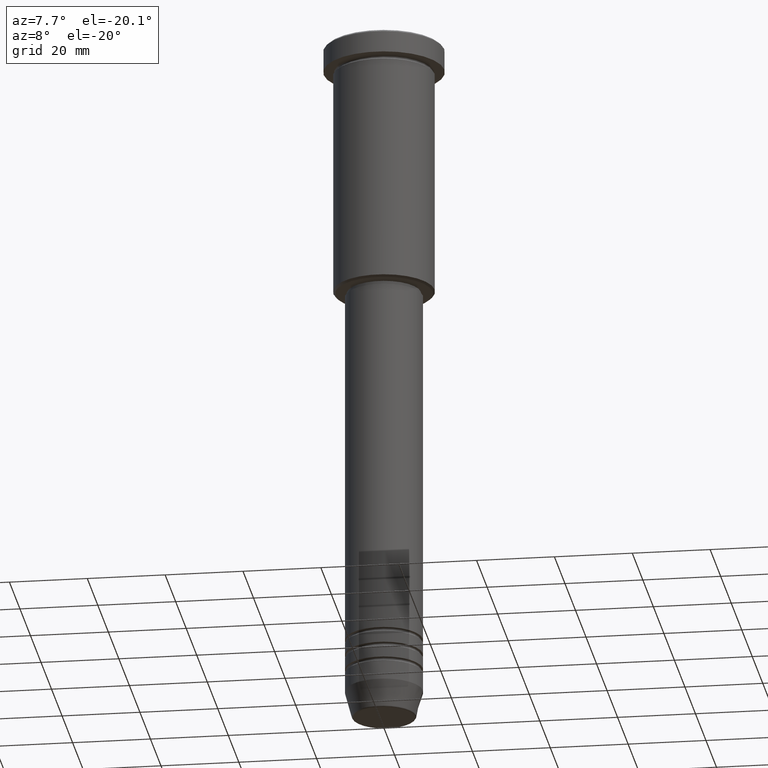
[diagram: clean part render]
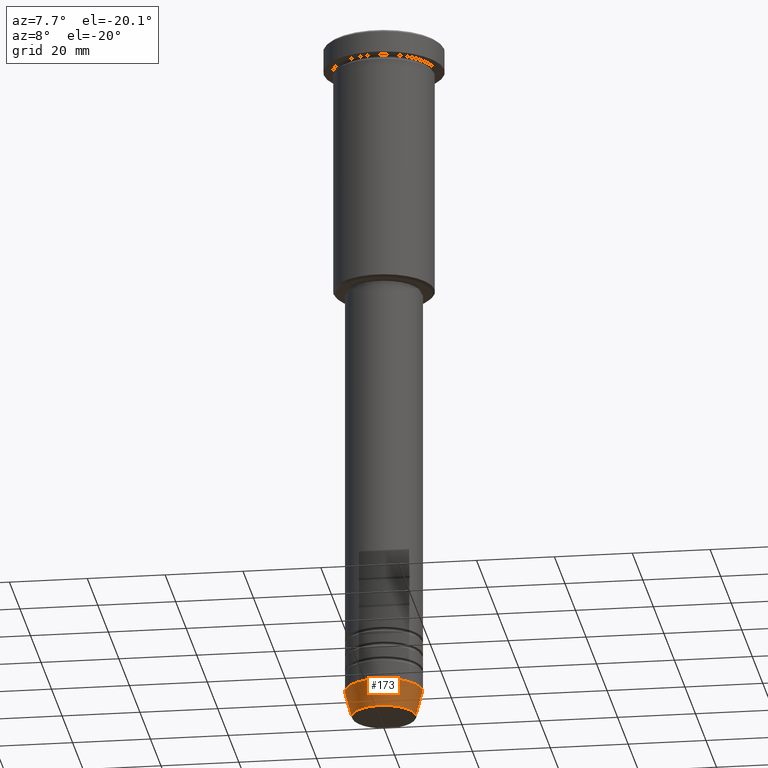
[diagram: same view with one face highlighted and labeled with its STEP entity id]
A machine part, auxiliary view. The second image highlights one B-rep face of the part: STEP entity #173.
In plain terms, the highlighted conical surface has half-angle 15 deg.
Its self-contained STEP definition (entity closure, byte-faithful):
#9 = ORIENTED_EDGE ( 'NONE', *, *, #24, .T. ) ;
#10 = CIRCLE ( 'NONE', #157, 8.223655072137185940 ) ;
#24 = EDGE_CURVE ( 'NONE', #479, #107, #10, .T. ) ;
#90 = DIRECTION ( 'NONE',  ( 1.000000000000000000, 0.000000000000000000, 0.000000000000000000 ) ) ;
#107 = VERTEX_POINT ( 'NONE', #774 ) ;
#110 = DIRECTION ( 'NONE',  ( 1.000000000000000000, 0.000000000000000000, 0.000000000000000000 ) ) ;
#157 = AXIS2_PLACEMENT_3D ( 'NONE', #279, #913, #650 ) ;
#173 = ADVANCED_FACE ( 'NONE', ( #1090 ), #1076, .T. ) ;
#214 = LINE ( 'NONE', #943, #382 ) ;
#264 = VERTEX_POINT ( 'NONE', #645 ) ;
#279 = CARTESIAN_POINT ( 'NONE',  ( 0.000000000000000000, 0.000000000000000000, -180.6294095225512706 ) ) ;
#297 = DIRECTION ( 'NONE',  ( -0.000000000000000000, -0.000000000000000000, 1.000000000000000000 ) ) ;
#382 = VECTOR ( 'NONE', #509, 1000.000000000000114 ) ;
#457 = VERTEX_POINT ( 'NONE', #593 ) ;
#478 = AXIS2_PLACEMENT_3D ( 'NONE', #1119, #297, #110 ) ;
#479 = VERTEX_POINT ( 'NONE', #845 ) ;
#503 = CIRCLE ( 'NONE', #806, 10.00000000000000000 ) ;
#509 = DIRECTION ( 'NONE',  ( 0.2588190451025210725, 0.000000000000000000, 0.9659258262890680902 ) ) ;
#522 = VECTOR ( 'NONE', #702, 1000.000000000000114 ) ;
#529 = EDGE_LOOP ( 'NONE', ( #905, #9, #594, #689 ) ) ;
#593 = CARTESIAN_POINT ( 'NONE',  ( -10.00000000000000000, 1.224646799147353256E-15, -174.0000000000000000 ) ) ;
#594 = ORIENTED_EDGE ( 'NONE', *, *, #860, .T. ) ;
#645 = CARTESIAN_POINT ( 'NONE',  ( 10.00000000000000000, 0.000000000000000000, -174.0000000000000000 ) ) ;
#650 = DIRECTION ( 'NONE',  ( 1.000000000000000000, 0.000000000000000000, 0.000000000000000000 ) ) ;
#668 = EDGE_CURVE ( 'NONE', #479, #457, #1149, .T. ) ;
#689 = ORIENTED_EDGE ( 'NONE', *, *, #824, .F. ) ;
#702 = DIRECTION ( 'NONE',  ( -0.2588190451025210725, 3.169619151431769255E-17, 0.9659258262890680902 ) ) ;
#774 = CARTESIAN_POINT ( 'NONE',  ( 8.223655072137185940, 0.000000000000000000, -180.6294095225512706 ) ) ;
#797 = CARTESIAN_POINT ( 'NONE',  ( -10.00000000000000000, 1.224646799147353256E-15, -174.0000000000000000 ) ) ;
#806 = AXIS2_PLACEMENT_3D ( 'NONE', #919, #903, #90 ) ;
#824 = EDGE_CURVE ( 'NONE', #457, #264, #503, .T. ) ;
#845 = CARTESIAN_POINT ( 'NONE',  ( -8.223655072137185940, 1.115877042642911659E-15, -180.6294095225512706 ) ) ;
#860 = EDGE_CURVE ( 'NONE', #107, #264, #214, .T. ) ;
#903 = DIRECTION ( 'NONE',  ( -0.000000000000000000, -0.000000000000000000, 1.000000000000000000 ) ) ;
#905 = ORIENTED_EDGE ( 'NONE', *, *, #668, .F. ) ;
#913 = DIRECTION ( 'NONE',  ( -0.000000000000000000, -0.000000000000000000, 1.000000000000000000 ) ) ;
#919 = CARTESIAN_POINT ( 'NONE',  ( 0.000000000000000000, 0.000000000000000000, -174.0000000000000000 ) ) ;
#943 = CARTESIAN_POINT ( 'NONE',  ( 10.00000000000000000, 0.000000000000000000, -174.0000000000000000 ) ) ;
#1076 = CONICAL_SURFACE ( 'NONE', #478, 10.00000000000000000, 0.2617993877991497964 ) ;
#1090 = FACE_OUTER_BOUND ( 'NONE', #529, .T. ) ;
#1119 = CARTESIAN_POINT ( 'NONE',  ( 0.000000000000000000, 0.000000000000000000, -174.0000000000000000 ) ) ;
#1149 = LINE ( 'NONE', #797, #522 ) ;